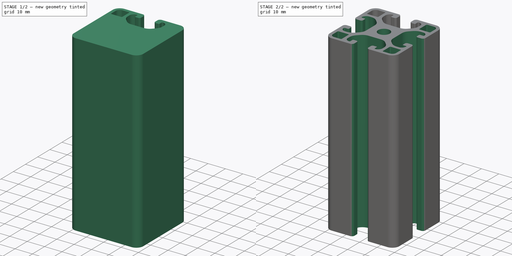
[diagram: build sequence overview — one tinted view per stage of 2, left to right]
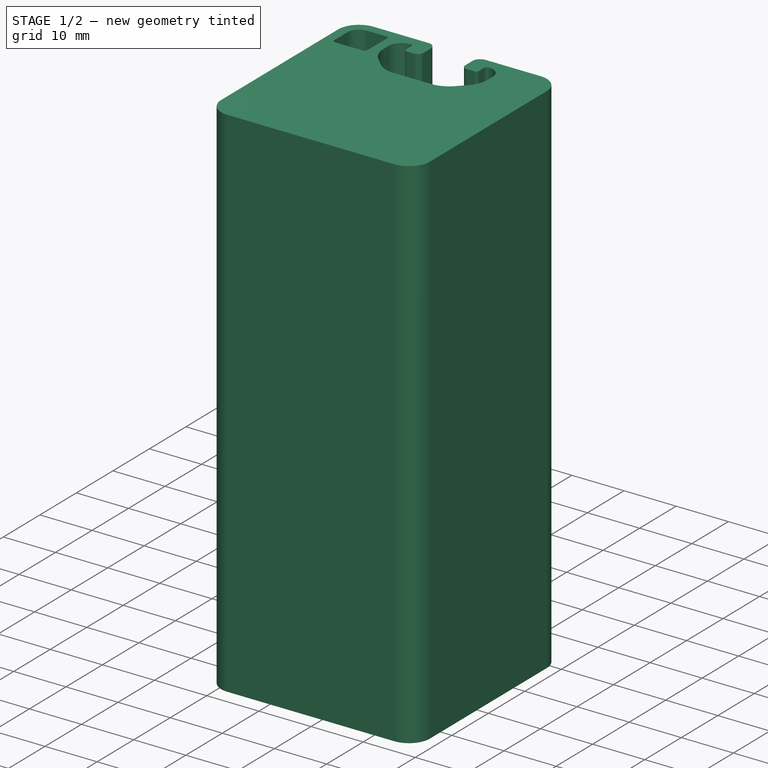
[diagram: stage 1 of 2 — iso view after this stage's code; geometry added in this stage tinted green]
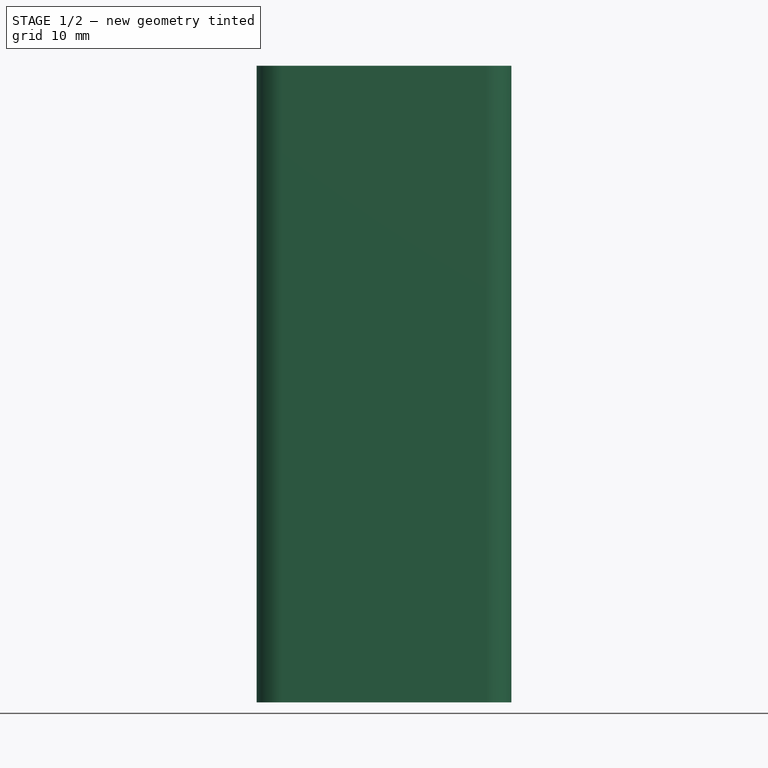
[diagram: stage 1 of 2 — front view after this stage's code; geometry added in this stage tinted green]
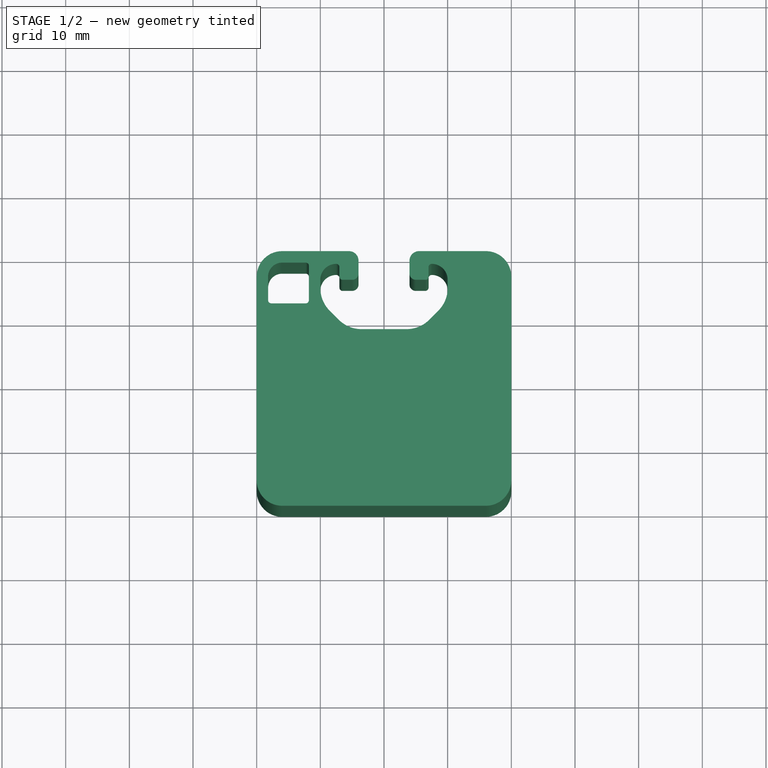
[diagram: stage 1 of 2 — top view after this stage's code; geometry added in this stage tinted green]
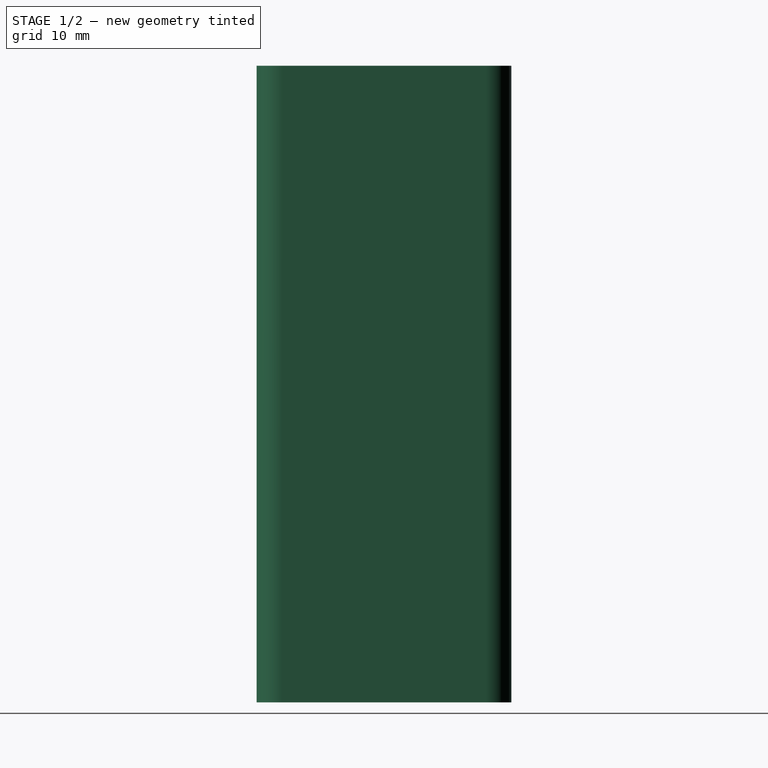
[diagram: stage 1 of 2 — right view after this stage's code; geometry added in this stage tinted green]
FCSTD DOCUMENT  (FreeCAD 0.18R16131 (Git))
Label: Profile-40x40L-I-Type_Slot8
License: All rights reserved
LicenseURL: http://en.wikipedia.org/wiki/All_rights_reserved
objects: Sketcher::SketchObject×3, PartDesign::Pocket×2, PartDesign::Pad×1, PartDesign::PolarPattern×1, PartDesign::Body×1
note: 11 computed .brp shape members not serialized (recipe doc carries the construction recipe); baked Part::Feature solids carry a one-line shape summary decoded from their .brp

FEATURE [Sketcher::SketchObject] Sketch
  MapMode = 5
  Support = -> [XY_Plane]
  sketch-geometry (8):
    g0: LineSegment StartX=-16 StartY=20 StartZ=0 EndX=16 EndY=20 EndZ=0
    g1: LineSegment StartX=20 StartY=16 StartZ=0 EndX=20 EndY=-16 EndZ=0
    g2: LineSegment StartX=16 StartY=-20 StartZ=0 EndX=-16 EndY=-20 EndZ=0
    g3: LineSegment StartX=-20 StartY=-16 StartZ=0 EndX=-20 EndY=16 EndZ=0
    g4: ArcOfCircle CenterX=-16 CenterY=16 CenterZ=0 NormalX=0 NormalY=0 NormalZ=1 AngleXU=0 Radius=4 StartAngle=1.5708 EndAngle=3.14159
    g5: ArcOfCircle CenterX=16 CenterY=16 CenterZ=0 NormalX=0 NormalY=0 NormalZ=1 AngleXU=0 Radius=4 StartAngle=0 EndAngle=1.5708
    g6: ArcOfCircle CenterX=16 CenterY=-16 CenterZ=0 NormalX=0 NormalY=0 NormalZ=1 AngleXU=0 Radius=4 StartAngle=4.71239 EndAngle=6.28319
    g7: ArcOfCircle CenterX=-16 CenterY=-16 CenterZ=0 NormalX=0 NormalY=0 NormalZ=1 AngleXU=0 Radius=4 StartAngle=3.14159 EndAngle=4.71239
  constraints (18):
    c: Horizontal(g0)
    c: Horizontal(g2)
    c: Vertical(g1)
    c: Tangent(g0,g4) = 1.5708
    c: Tangent(g3,g4) = 1.5708
    c: Tangent(g0,g5) = 1.5708
    c: Tangent(g1,g5) = 1.5708
    c: Tangent(g1,g6) = 1.5708
    c: Tangent(g2,g6) = 1.5708
    c: Tangent(g3,g7) = 1.5708
    c: Tangent(g2,g7) = 1.5708
    c: Symmetric(g3,g1,g-2)
    c: Symmetric(g3,g3,g-1)
    c: Equal(g5,g7)
    c: Equal(g7,g6)
    c: DistanceX(g3,g1) = 40
    c: Radius(g4) = 4
    c: DistanceY(g2,g0) = 40
FEATURE [PartDesign::Pad] Pad  label="Solid_Material"
  Length = 100
  Length2 = 100
  Profile = -> Sketch
  Type = 0
FEATURE [Sketcher::SketchObject] Sketch001
  ExternalGeometry = -> [Pad]
  MapMode = 5
  Placement = pos=(0,0,100) rot=(0,0,1;0rad)
  Support = -> [Pad]
  sketch-geometry (34):
    g0: LineSegment StartX=-16 StartY=18.2 StartZ=0 EndX=-12.3 EndY=18.2 EndZ=0
    g1: LineSegment StartX=-11.8 StartY=17.7 StartZ=0 EndX=-11.8 EndY=12.3 EndZ=0
    g2: LineSegment StartX=-12.3 StartY=11.8 StartZ=0 EndX=-17.7 EndY=11.8 EndZ=0
    g3: LineSegment StartX=-18.2 StartY=12.3 StartZ=0 EndX=-18.2 EndY=16 EndZ=0
    g4: ArcOfCircle CenterX=-16 CenterY=16 CenterZ=0 NormalX=0 NormalY=0 NormalZ=1 AngleXU=0 Radius=2.2 StartAngle=1.5708 EndAngle=3.14159
    g5: ArcOfCircle CenterX=-17.7 CenterY=12.3 CenterZ=0 NormalX=0 NormalY=0 NormalZ=1 AngleXU=0 Radius=0.5 StartAngle=3.14159 EndAngle=4.71239
    g6: ArcOfCircle CenterX=-12.3 CenterY=12.3 CenterZ=0 NormalX=0 NormalY=0 NormalZ=1 AngleXU=0 Radius=0.5 StartAngle=4.71239 EndAngle=6.28319
    g7: ArcOfCircle CenterX=-12.3 CenterY=17.7 CenterZ=0 NormalX=0 NormalY=0 NormalZ=1 AngleXU=0 Radius=0.5 StartAngle=-2.7e-15 EndAngle=1.5708
    g8: ArcOfCircle CenterX=-5.5 CenterY=18.5 CenterZ=0 NormalX=0 NormalY=0 NormalZ=1 AngleXU=0 Radius=1.5 StartAngle=7e-16 EndAngle=1.5708
    g9: LineSegment StartX=-4 StartY=18.5 StartZ=0 EndX=-4 EndY=16.5 EndZ=0
    g10: ArcOfCircle CenterX=-5 CenterY=16.5 CenterZ=0 NormalX=0 NormalY=0 NormalZ=1 AngleXU=0 Radius=1 StartAngle=4.71239 EndAngle=6.28319
    g11: LineSegment StartX=-5 StartY=15.5 StartZ=0 EndX=-6.5 EndY=15.5 EndZ=0
    g12: ArcOfCircle CenterX=-6.5 CenterY=16 CenterZ=0 NormalX=0 NormalY=0 NormalZ=1 AngleXU=0 Radius=0.5 StartAngle=3.14159 EndAngle=4.71239
    g13: LineSegment StartX=-7 StartY=16 StartZ=0 EndX=-7 EndY=17.5 EndZ=0
    g14: ArcOfCircle CenterX=-7.5 CenterY=17.5 CenterZ=0 NormalX=0 NormalY=0 NormalZ=1 AngleXU=0 Radius=0.5 StartAngle=-9e-16 EndAngle=1.5708
    g15: ArcOfCircle CenterX=-7.5 CenterY=15.5 CenterZ=0 NormalX=0 NormalY=0 NormalZ=1 AngleXU=0 Radius=2.5 StartAngle=1.5708 EndAngle=3.14159
    g16: LineSegment StartX=-10 StartY=15.5 StartZ=0 EndX=-10 EndY=14.19 EndZ=0
    g17: ArcOfCircle CenterX=-5 CenterY=14.19 CenterZ=0 NormalX=0 NormalY=0 NormalZ=1 AngleXU=0 Radius=5 StartAngle=3.14159 EndAngle=3.92699
    g18: LineSegment StartX=-8.53553 StartY=10.6545 StartZ=0 EndX=-7.09553 EndY=9.21447 EndZ=0
    g19: ArcOfCircle CenterX=-3.56 CenterY=12.75 CenterZ=0 NormalX=0 NormalY=0 NormalZ=1 AngleXU=0 Radius=5 StartAngle=3.92699 EndAngle=4.71239
    g20: LineSegment StartX=-3.56 StartY=7.75 StartZ=0 EndX=3.56 EndY=7.75 EndZ=0
    g21: ArcOfCircle CenterX=3.56 CenterY=12.75 CenterZ=0 NormalX=0 NormalY=0 NormalZ=1 AngleXU=0 Radius=5 StartAngle=4.71239 EndAngle=5.49779
    g22: LineSegment StartX=7.09553 StartY=9.21447 StartZ=0 EndX=8.53553 EndY=10.6545 EndZ=0
    g23: ArcOfCircle CenterX=5 CenterY=14.19 CenterZ=0 NormalX=0 NormalY=0 NormalZ=1 AngleXU=0 Radius=5 StartAngle=5.49779 EndAngle=6.28319
    g24: LineSegment StartX=10 StartY=14.19 StartZ=0 EndX=10 EndY=15.5 EndZ=0
    g25: ArcOfCircle CenterX=7.5 CenterY=15.5 CenterZ=0 NormalX=0 NormalY=0 NormalZ=1 AngleXU=0 Radius=2.5 StartAngle=9e-16 EndAngle=1.5708
    g26: ArcOfCircle CenterX=7.5 CenterY=17.5 CenterZ=0 NormalX=0 NormalY=0 NormalZ=1 AngleXU=0 Radius=0.5 StartAngle=1.5708 EndAngle=3.14159
    g27: LineSegment StartX=7 StartY=17.5 StartZ=0 EndX=7 EndY=16 EndZ=0
    g28: ArcOfCircle CenterX=6.5 CenterY=16 CenterZ=0 NormalX=0 NormalY=0 NormalZ=1 AngleXU=0 Radius=0.5 StartAngle=4.71239 EndAngle=6.28319
    g29: LineSegment StartX=6.5 StartY=15.5 StartZ=0 EndX=5 EndY=15.5 EndZ=0
    g30: ArcOfCircle CenterX=5 CenterY=16.5 CenterZ=0 NormalX=0 NormalY=0 NormalZ=1 AngleXU=0 Radius=1 StartAngle=3.14159 EndAngle=4.71239
    g31: LineSegment StartX=4 StartY=16.5 StartZ=0 EndX=4 EndY=18.5 EndZ=0
    g32: ArcOfCircle CenterX=5.5 CenterY=18.5 CenterZ=0 NormalX=0 NormalY=0 NormalZ=1 AngleXU=0 Radius=1.5 StartAngle=1.5708 EndAngle=3.14159
    g33: LineSegment StartX=5.5 StartY=20 StartZ=0 EndX=-5.5 EndY=20 EndZ=0
  constraints (85):
    c: Horizontal(g0)
    c: Horizontal(g2)
    c: Vertical(g1)
    c: Vertical(g3)
    c: Tangent(g0,g4) = 1.5708
    c: Tangent(g3,g4) = 1.5708
    c: Tangent(g3,g5) = 1.5708
    c: Tangent(g2,g5) = 1.5708
    c: Tangent(g2,g6) = 1.5708
    c: Tangent(g1,g6) = 1.5708
    c: Tangent(g0,g7) = 1.5708
    c: Tangent(g1,g7) = 1.5708
    c: Radius(g7) = 0.5
    c: Radius(g4) = 2.2
    c: DistanceX(g-4,g3) = 1.8
    c: DistanceY(g0,g-3) = 1.8
    c: DistanceX(g3,g1) = 6.4
    c: DistanceY(g2,g0) = 6.4
    c: Equal(g7,g6)
    c: Equal(g6,g5)
    c: PointOnObject(g8,g-3)
    c: Tangent(g-3,g8)
    c: Tangent(g8,g9) = 1.5708
    c: Vertical(g9)
    c: Tangent(g9,g10) = 1.5708
    c: Tangent(g10,g11) = 1.5708
    c: Tangent(g11,g12) = 1.5708
    c: Tangent(g12,g13) = 1.5708
    c: Tangent(g13,g14) = -1.5708
    c: Tangent(g14,g15) = -1.5708
    c: Tangent(g15,g16) = -1.5708
    c: Tangent(g16,g17) = -1.5708
    c: Tangent(g17,g18) = -1.5708
    c: Tangent(g18,g19) = -1.5708
    c: Tangent(g19,g20) = -1.5708
    c: Tangent(g20,g21) = -1.5708
    c: Tangent(g21,g22) = -1.5708
    c: Tangent(g22,g23) = -1.5708
    c: Tangent(g23,g24) = -1.5708
    c: Tangent(g24,g25) = -1.5708
    c: Tangent(g25,g26) = -1.5708
    c: Tangent(g26,g27) = -1.5708
    c: Tangent(g27,g28) = 1.5708
    c: Tangent(g28,g29) = 1.5708
    c: Tangent(g29,g30) = 1.5708
    c: Tangent(g30,g31) = 1.5708
    c: Tangent(g31,g32) = 1.5708
    c: Vertical(g31)
    c: Horizontal(g29)
    c: Horizontal(g11)
    c: Vertical(g13)
    c: Vertical(g27)
    c: Radius(g8) = 1.5
    c: Radius(g10) = 1
    c: Equal(g10,g30)
    c: Equal(g8,g32)
    c: Tangent(g-3,g32)
    c: Coincident(g33,g8)
    c: Symmetric(g8,g32,g-2)
    c: Coincident(g33,g32)
    c: Equal(g9,g31)
    c: DistanceY(g9,g9) = 2
    c: Equal(g11,g29)
    c: Radius(g12) = 0.5
    c: Radius(g14) = 0.5
    c: DistanceX(g11,g11) = 1.5
    c: DistanceX(g8,g31) = 8
    c: Equal(g12,g28)
    c: Equal(g14,g26)
    c: DistanceY(g13,g13) = 1.5
    c: Equal(g13,g27)
    c: Radius(g15) = 2.5
    c: Equal(g15,g25)
    c: Radius(g17) = 5
    c: Radius(g19) = 5
    c: Vertical(g16)
    c: Symmetric(g19,g20,g-2)
    c: Equal(g19,g21)
    c: Equal(g17,g23)
    c: DistanceX(g20,g20) = 7.12
    c: DistanceY(g16,g16) = 1.31
    c: Equal(g16,g24)
    c: Symmetric(g15,g24,g-2)
    c: DistanceY(g20,g32) = 12.25
    c: DistanceX(g15,g24) = 20
FEATURE [PartDesign::Pocket] Pocket
  BaseFeature = -> Pad
  Length = 5
  Length2 = 100
  Profile = -> Sketch001
  Type = 1
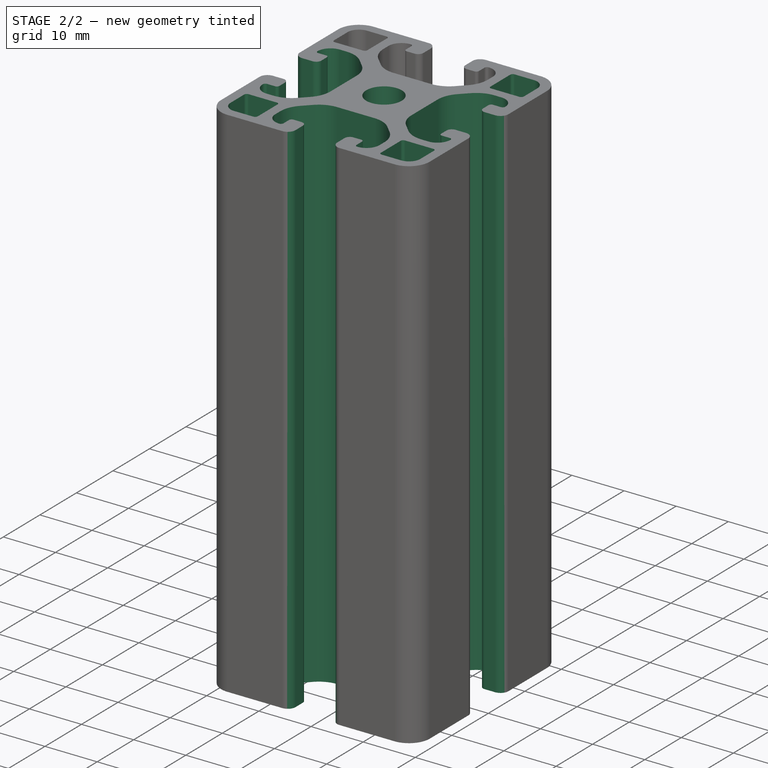
[diagram: stage 2 of 2 — iso view after this stage's code; geometry added in this stage tinted green]
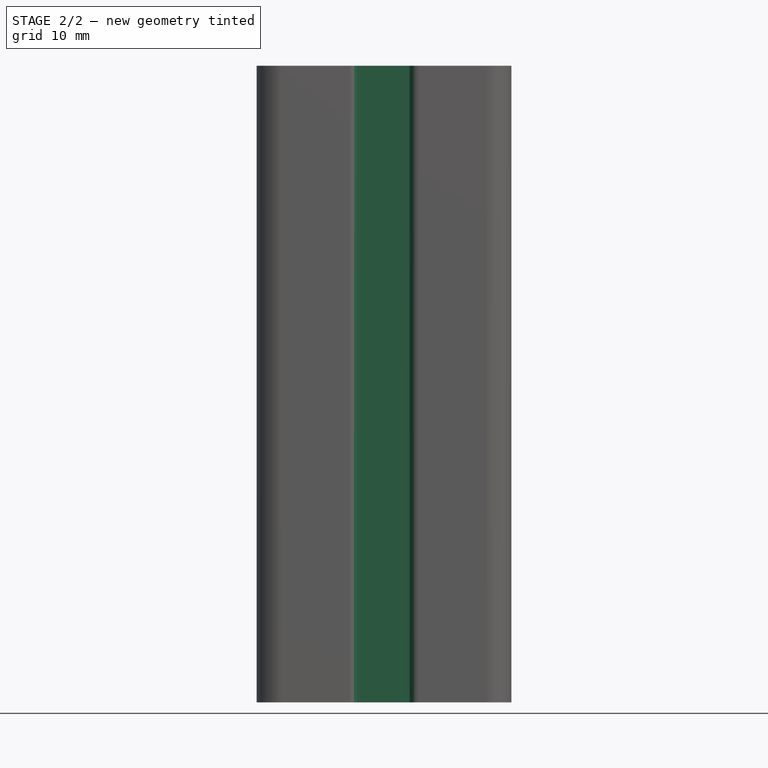
[diagram: stage 2 of 2 — front view after this stage's code; geometry added in this stage tinted green]
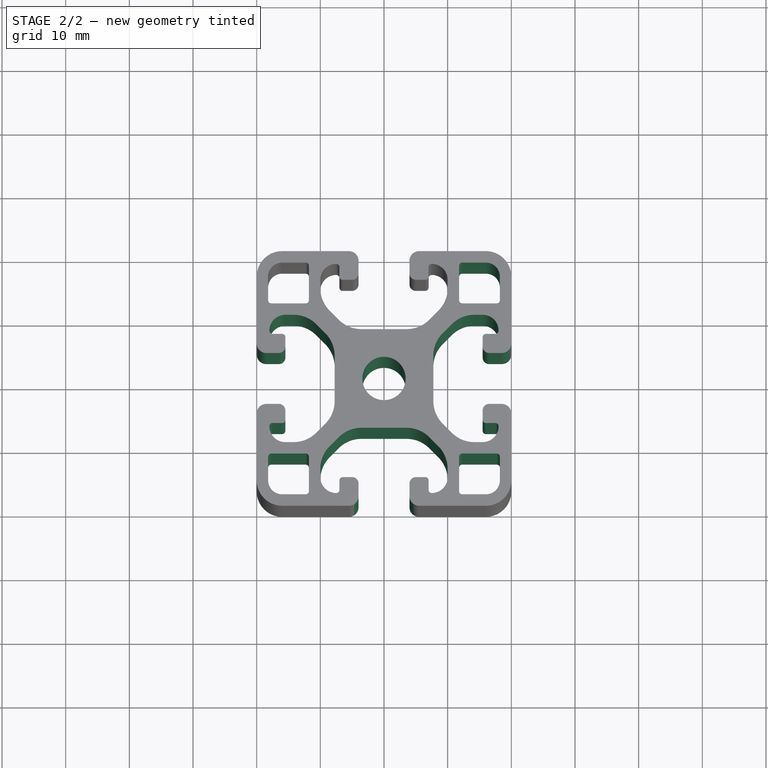
[diagram: stage 2 of 2 — top view after this stage's code; geometry added in this stage tinted green]
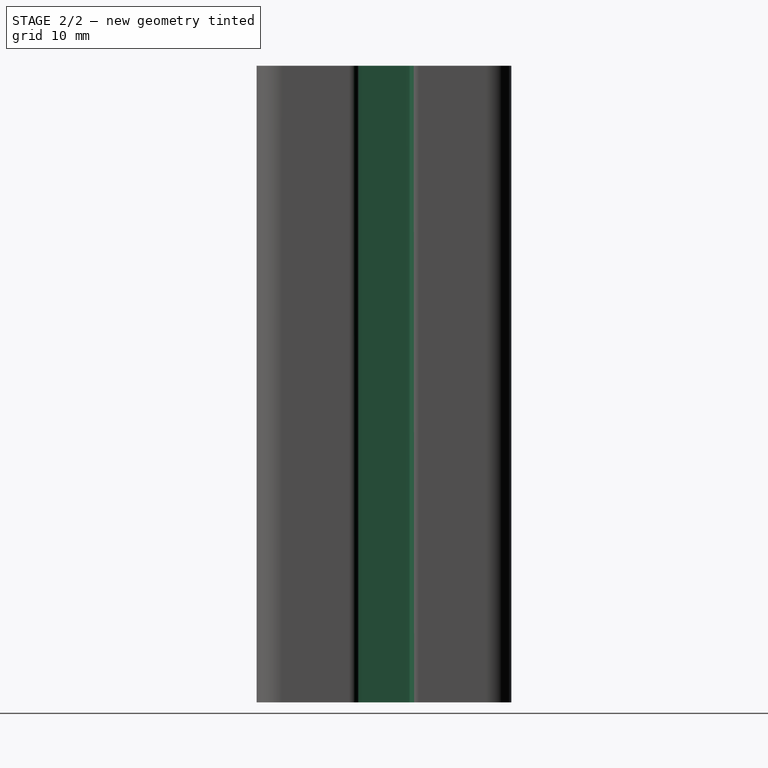
[diagram: stage 2 of 2 — right view after this stage's code; geometry added in this stage tinted green]
FEATURE [PartDesign::PolarPattern] PolarPattern
  Angle = 360
  Axis = -> Sketch001 [N_Axis]
  BaseFeature = -> Pocket
  Occurrences = 4
  Originals = -> [Pocket]
FEATURE [Sketcher::SketchObject] Sketch002
  MapMode = 5
  Placement = pos=(0,0,100) rot=(0,0,1;0rad)
  Support = -> [PolarPattern]
  sketch-geometry (1):
    g0: Circle CenterX=0 CenterY=0 CenterZ=0 NormalX=0 NormalY=0 NormalZ=1 AngleXU=0 Radius=3.4
  constraints (2):
    c: Coincident(g0,g-1)
    c: Radius(g0) = 3.4
FEATURE [PartDesign::Pocket] Pocket001
  BaseFeature = -> PolarPattern
  Length = 5
  Length2 = 100
  Profile = -> Sketch002
  Type = 1
FEATURE [PartDesign::Body] Body
  Group = -> [Sketch,Pad,Sketch001,Pocket,PolarPattern,Sketch002,Pocket001]
  Origin = -> Origin
  Tip = -> Pocket001
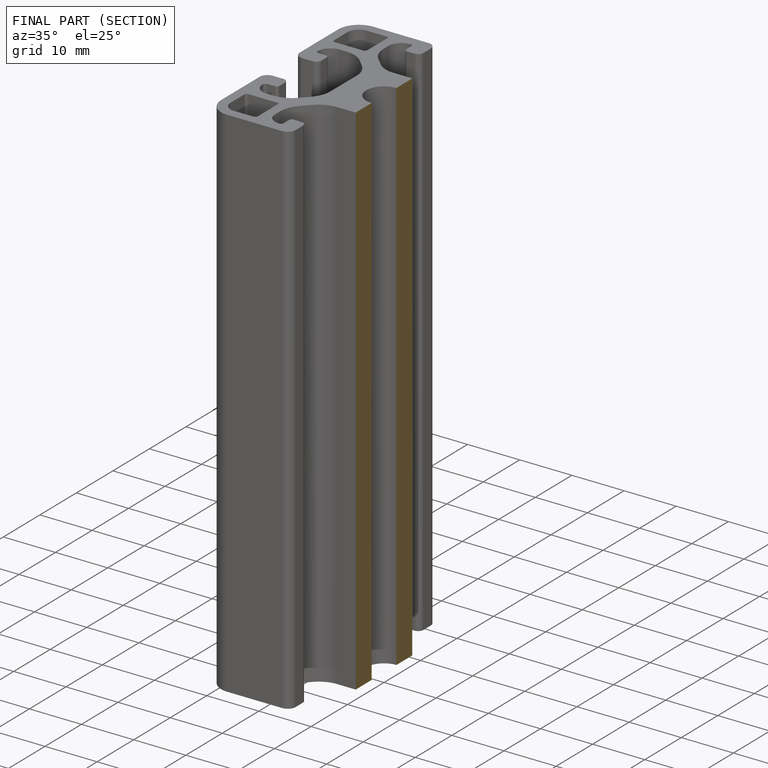
[diagram: finished part — half-section view (interior)]
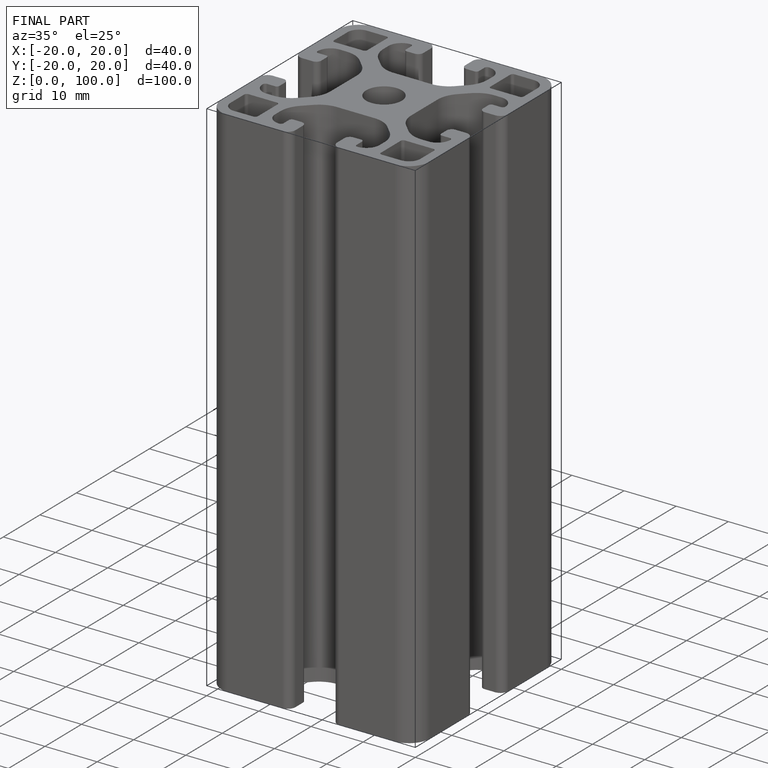
[diagram: finished part — iso view with bounding-box wireframe]
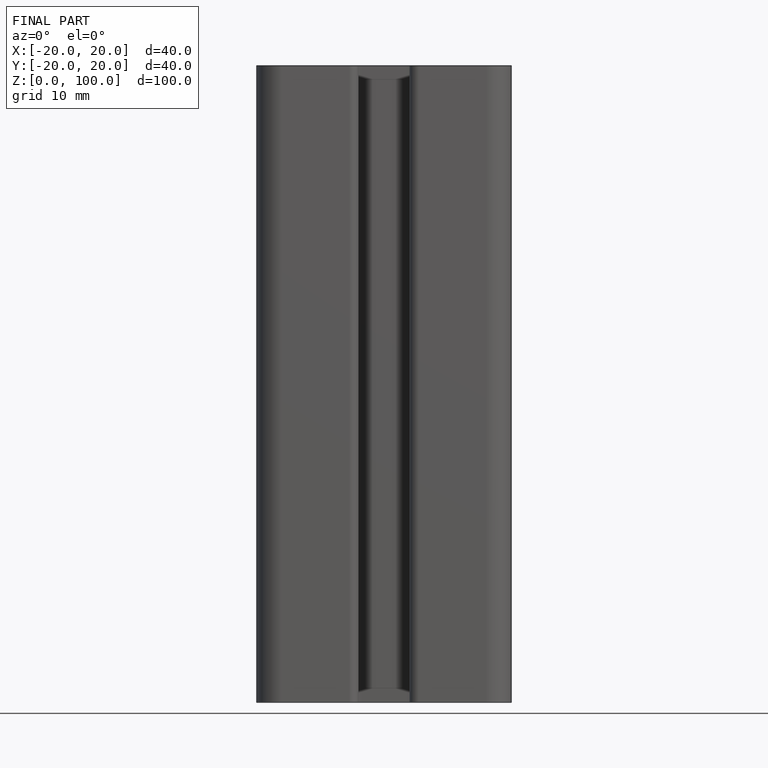
[diagram: finished part — front view with bounding-box wireframe]
